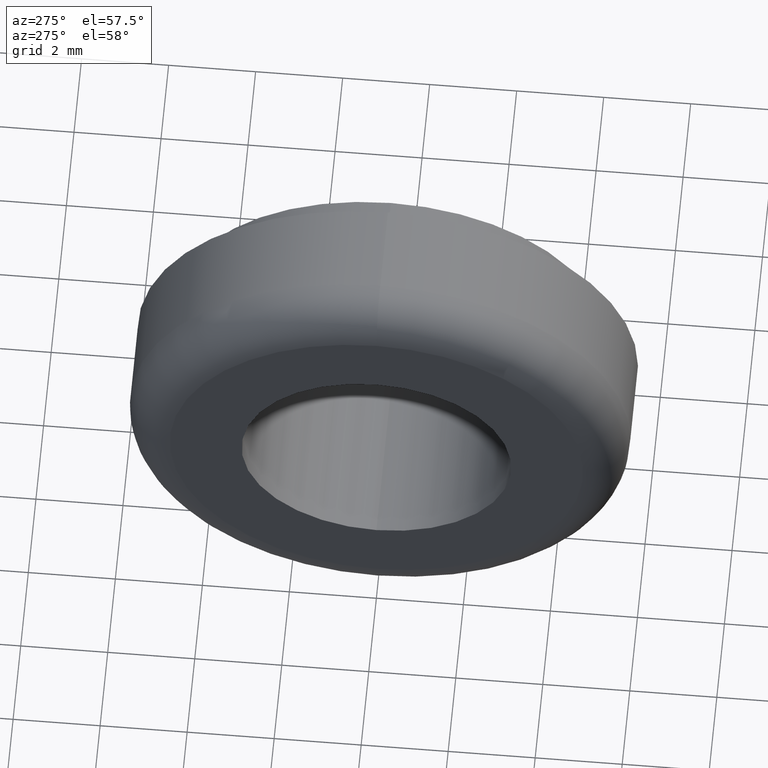
[diagram: clean part render]
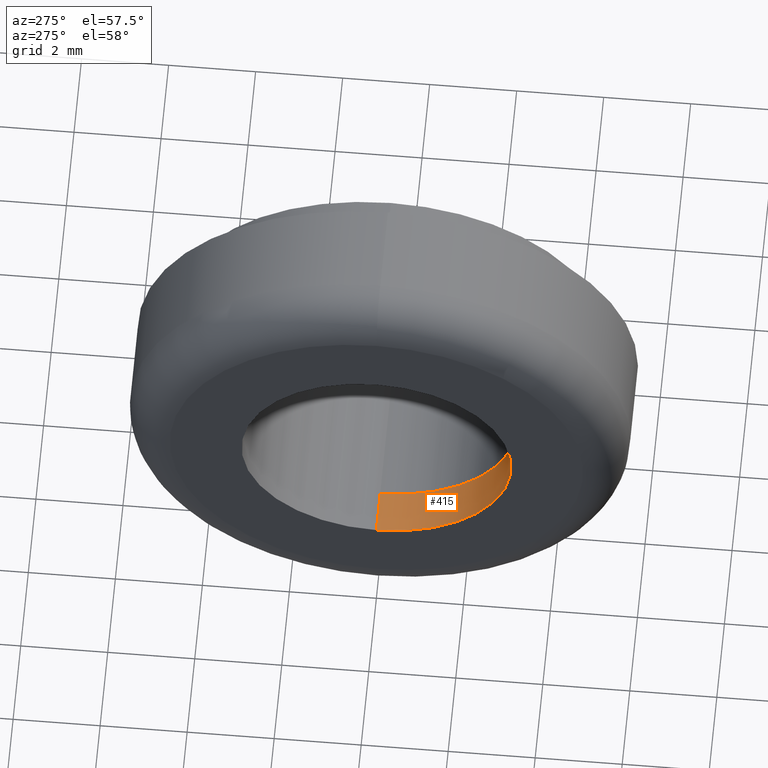
[diagram: same view with one face highlighted and labeled with its STEP entity id]
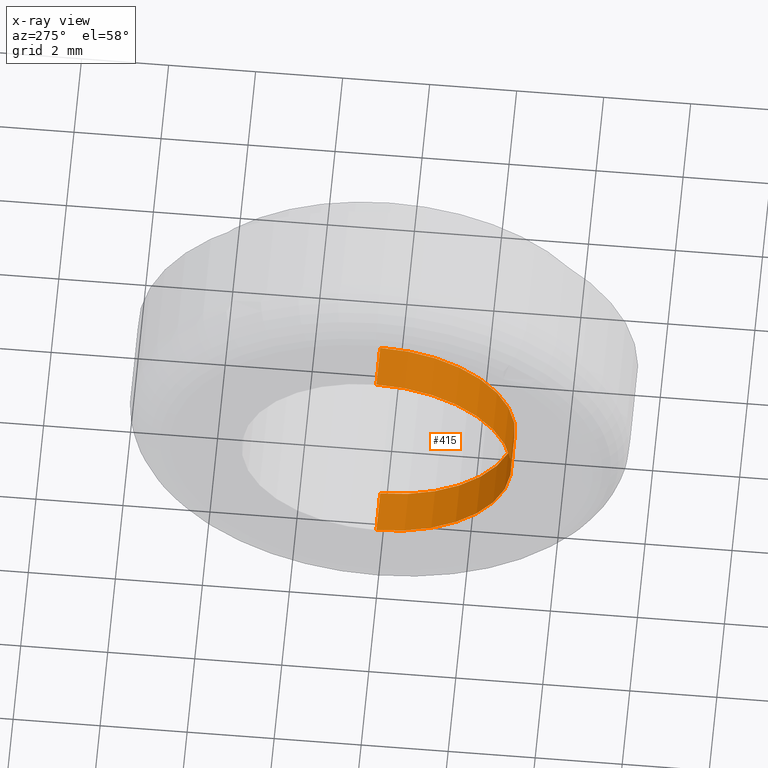
[diagram: x-ray of the same camera — body ghosted, the highlighted face saturated]
A machine part, auxiliary view. The second image highlights one B-rep face of the part: STEP entity #415.
The next image is the same camera in x-ray: the body ghosted, the highlighted face saturated — about 0% of this face is hidden behind the body in this view.
In plain terms, the highlighted cylindrical surface (partial cylindrical patch) has radius 3.1 mm, axis along (-1, 0, 0).
Its self-contained STEP definition (entity closure, byte-faithful):
#55 = CYLINDRICAL_SURFACE ( 'NONE', #522, 3.100000000000000100 ) ;
#77 = FACE_OUTER_BOUND ( 'NONE', #207, .T. ) ;
#97 = CARTESIAN_POINT ( 'NONE',  ( 0.0000000000000000000, 0.0000000000000000000, 3.100000000000000100 ) ) ;
#109 = CIRCLE ( 'NONE', #195, 3.100000000000000100 ) ;
#129 = DIRECTION ( 'NONE',  ( 1.000000000000000000, 0.0000000000000000000, 0.0000000000000000000 ) ) ;
#154 = VECTOR ( 'NONE', #230, 1000.000000000000000 ) ;
#167 = CARTESIAN_POINT ( 'NONE',  ( 1.000000000000000000, 0.0000000000000000000, 0.0000000000000000000 ) ) ;
#195 = AXIS2_PLACEMENT_3D ( 'NONE', #167, #558, #220 ) ;
#197 = VERTEX_POINT ( 'NONE', #544 ) ;
#204 = CARTESIAN_POINT ( 'NONE',  ( 0.0000000000000000000, 3.796405077356794900E-016, -3.100000000000000100 ) ) ;
#207 = EDGE_LOOP ( 'NONE', ( #667, #538, #618, #366 ) ) ;
#220 = DIRECTION ( 'NONE',  ( 0.0000000000000000000, 0.0000000000000000000, -1.000000000000000000 ) ) ;
#230 = DIRECTION ( 'NONE',  ( -1.000000000000000000, 0.0000000000000000000, 0.0000000000000000000 ) ) ;
#235 = EDGE_CURVE ( 'NONE', #197, #466, #692, .T. ) ;
#306 = LINE ( 'NONE', #506, #154 ) ;
#310 = CARTESIAN_POINT ( 'NONE',  ( 3.000000000000000000, 3.796405077356794900E-016, -3.100000000000000100 ) ) ;
#335 = DIRECTION ( 'NONE',  ( -1.000000000000000000, 0.0000000000000000000, 0.0000000000000000000 ) ) ;
#338 = EDGE_CURVE ( 'NONE', #658, #466, #460, .T. ) ;
#353 = DIRECTION ( 'NONE',  ( -1.000000000000000000, 0.0000000000000000000, 0.0000000000000000000 ) ) ;
#366 = ORIENTED_EDGE ( 'NONE', *, *, #616, .F. ) ;
#386 = CARTESIAN_POINT ( 'NONE',  ( 1.000000000000000000, 0.0000000000000000000, 3.100000000000000100 ) ) ;
#415 = ADVANCED_FACE ( 'NONE', ( #77 ), #55, .F. ) ;
#451 = CARTESIAN_POINT ( 'NONE',  ( 3.000000000000000000, 0.0000000000000000000, 0.0000000000000000000 ) ) ;
#460 = CIRCLE ( 'NONE', #648, 3.100000000000000100 ) ;
#466 = VERTEX_POINT ( 'NONE', #204 ) ;
#469 = CARTESIAN_POINT ( 'NONE',  ( 0.0000000000000000000, 0.0000000000000000000, 0.0000000000000000000 ) ) ;
#506 = CARTESIAN_POINT ( 'NONE',  ( 3.000000000000000000, 0.0000000000000000000, 3.100000000000000100 ) ) ;
#521 = DIRECTION ( 'NONE',  ( 0.0000000000000000000, 0.0000000000000000000, -1.000000000000000000 ) ) ;
#522 = AXIS2_PLACEMENT_3D ( 'NONE', #451, #335, #561 ) ;
#538 = ORIENTED_EDGE ( 'NONE', *, *, #235, .T. ) ;
#544 = CARTESIAN_POINT ( 'NONE',  ( 1.000000000000000000, 3.796405077356794900E-016, -3.100000000000000100 ) ) ;
#558 = DIRECTION ( 'NONE',  ( -1.000000000000000000, -0.0000000000000000000, -0.0000000000000000000 ) ) ;
#561 = DIRECTION ( 'NONE',  ( 0.0000000000000000000, 0.0000000000000000000, 1.000000000000000000 ) ) ;
#616 = EDGE_CURVE ( 'NONE', #726, #658, #306, .T. ) ;
#618 = ORIENTED_EDGE ( 'NONE', *, *, #338, .F. ) ;
#648 = AXIS2_PLACEMENT_3D ( 'NONE', #469, #129, #521 ) ;
#658 = VERTEX_POINT ( 'NONE', #97 ) ;
#667 = ORIENTED_EDGE ( 'NONE', *, *, #687, .F. ) ;
#674 = VECTOR ( 'NONE', #353, 1000.000000000000000 ) ;
#687 = EDGE_CURVE ( 'NONE', #197, #726, #109, .T. ) ;
#692 = LINE ( 'NONE', #310, #674 ) ;
#726 = VERTEX_POINT ( 'NONE', #386 ) ;